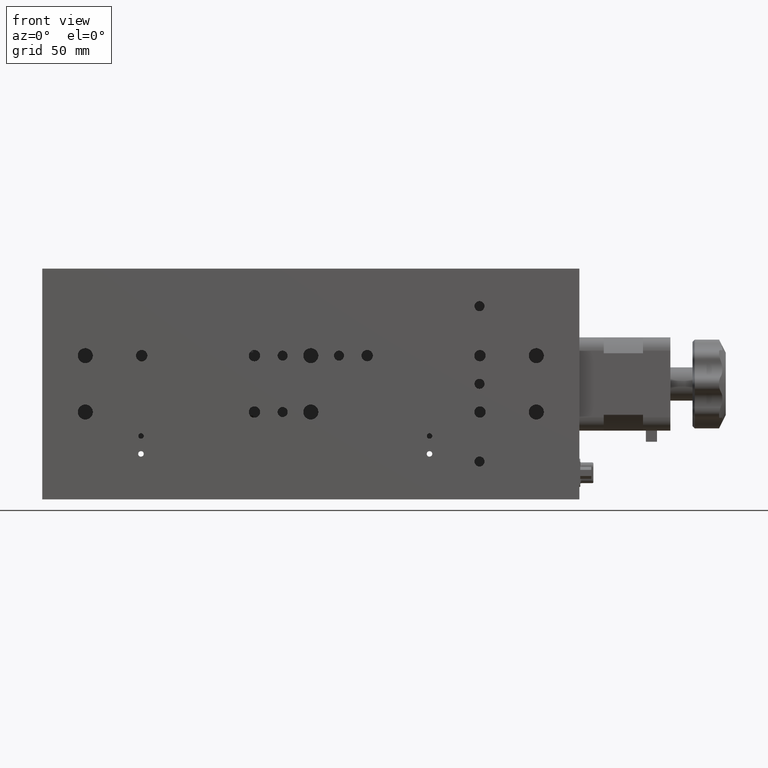
[diagram: clean part render]
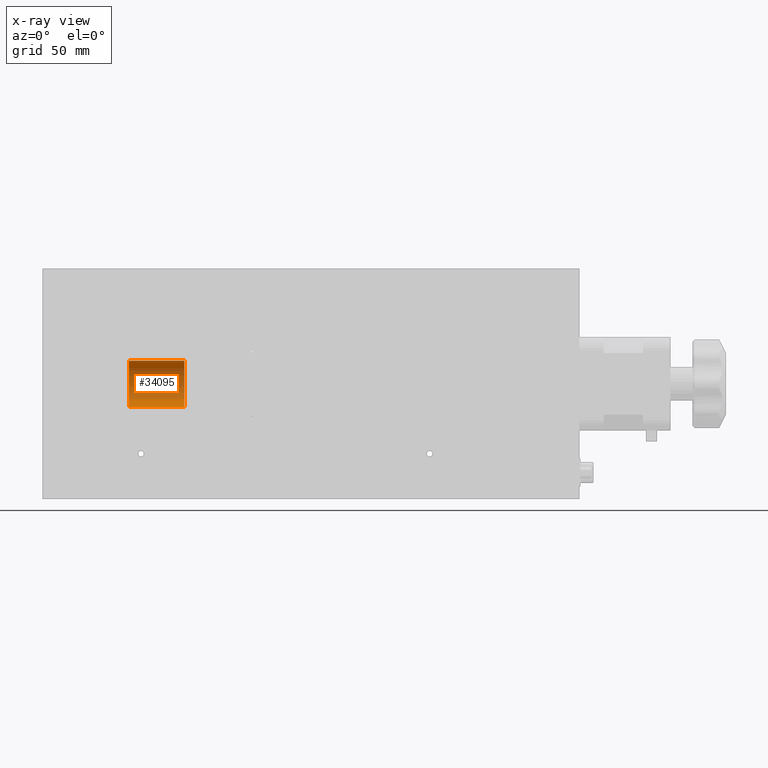
[diagram: x-ray — body ghosted, one internal face saturated and labeled with its STEP entity id]
A machine part, front view, then the same camera in x-ray: the body is ghosted and one INTERNAL B-rep face — a face not visible from any outside direction — is saturated and labeled: STEP entity #34095.
In plain terms, the highlighted cylindrical surface (edge-blend (fillet) strip) has radius 10.5 mm, axis along (-1, -0, -0).
Its self-contained STEP definition (entity closure, byte-faithful):
#397 = CYLINDRICAL_SURFACE ( 'NONE', #7996, 10.50000000000000000 ) ;
#2437 = CARTESIAN_POINT ( 'NONE',  ( -56.95563374086460600, 27.49999999999992200, 10.49999999999999100 ) ) ;
#3318 = DIRECTION ( 'NONE',  ( 1.000000000000000000, 1.734723475976810500E-016, 1.224606353822373600E-016 ) ) ;
#3825 = FACE_OUTER_BOUND ( 'NONE', #27642, .T. ) ;
#3946 = AXIS2_PLACEMENT_3D ( 'NONE', #31856, #15468, #34627 ) ;
#5999 = DIRECTION ( 'NONE',  ( -1.000000000000000000, -1.734723475976810500E-016, -1.224606353822373600E-016 ) ) ;
#6397 = ORIENTED_EDGE ( 'NONE', *, *, #28866, .F. ) ;
#6811 = CARTESIAN_POINT ( 'NONE',  ( -21.95563374086460900, 27.49999999999991100, -10.50000000000000700 ) ) ;
#6950 = LINE ( 'NONE', #6811, #21502 ) ;
#7996 = AXIS2_PLACEMENT_3D ( 'NONE', #13105, #29485, #10498 ) ;
#10498 = DIRECTION ( 'NONE',  ( 0.0000000000000000000, 9.912705577010326500E-016, 1.000000000000000000 ) ) ;
#11645 = ORIENTED_EDGE ( 'NONE', *, *, #32655, .T. ) ;
#12485 = CIRCLE ( 'NONE', #3946, 10.50000000000000000 ) ;
#12505 = ORIENTED_EDGE ( 'NONE', *, *, #31229, .F. ) ;
#12838 = EDGE_CURVE ( 'NONE', #14574, #30433, #13344, .T. ) ;
#12918 = VERTEX_POINT ( 'NONE', #20099 ) ;
#13105 = CARTESIAN_POINT ( 'NONE',  ( -21.95563374086460900, 27.49999999999991800, -6.179623024688121700E-015 ) ) ;
#13344 = LINE ( 'NONE', #14217, #33487 ) ;
#13535 = CIRCLE ( 'NONE', #16150, 10.50000000000000000 ) ;
#14217 = CARTESIAN_POINT ( 'NONE',  ( -21.95563374086460900, 27.49999999999992900, 10.49999999999999300 ) ) ;
#14574 = VERTEX_POINT ( 'NONE', #2437 ) ;
#15468 = DIRECTION ( 'NONE',  ( 1.000000000000000000, 1.734723475976810500E-016, 1.224606353822373600E-016 ) ) ;
#15472 = VERTEX_POINT ( 'NONE', #34416 ) ;
#16150 = AXIS2_PLACEMENT_3D ( 'NONE', #19692, #3318, #22449 ) ;
#17563 = DIRECTION ( 'NONE',  ( -1.000000000000000000, -1.734723475976810500E-016, -1.224606353822373600E-016 ) ) ;
#17965 = ORIENTED_EDGE ( 'NONE', *, *, #12838, .T. ) ;
#19692 = CARTESIAN_POINT ( 'NONE',  ( -56.95563374086460600, 27.49999999999991100, -1.046574526306642800E-014 ) ) ;
#19754 = CARTESIAN_POINT ( 'NONE',  ( -81.95563374086459900, 27.49999999999992200, 10.49999999999998800 ) ) ;
#20099 = CARTESIAN_POINT ( 'NONE',  ( -81.95563374086459900, 27.49999999999990100, -10.50000000000001400 ) ) ;
#21502 = VECTOR ( 'NONE', #17563, 1000.000000000000000 ) ;
#22449 = DIRECTION ( 'NONE',  ( 0.0000000000000000000, -9.912705577010326500E-016, -1.000000000000000000 ) ) ;
#27642 = EDGE_LOOP ( 'NONE', ( #6397, #11645, #17965, #12505 ) ) ;
#28866 = EDGE_CURVE ( 'NONE', #15472, #12918, #6950, .T. ) ;
#29485 = DIRECTION ( 'NONE',  ( -1.000000000000000000, -1.734723475976810500E-016, -1.224606353822373600E-016 ) ) ;
#30433 = VERTEX_POINT ( 'NONE', #19754 ) ;
#31229 = EDGE_CURVE ( 'NONE', #12918, #30433, #12485, .T. ) ;
#31856 = CARTESIAN_POINT ( 'NONE',  ( -81.95563374086459900, 27.49999999999990400, -1.352726114762236300E-014 ) ) ;
#32655 = EDGE_CURVE ( 'NONE', #15472, #14574, #13535, .T. ) ;
#33487 = VECTOR ( 'NONE', #5999, 1000.000000000000000 ) ;
#34095 = ADVANCED_FACE ( 'NONE', ( #3825 ), #397, .F. ) ;
#34416 = CARTESIAN_POINT ( 'NONE',  ( -56.95563374086460600, 27.49999999999990100, -10.50000000000001100 ) ) ;
#34627 = DIRECTION ( 'NONE',  ( 0.0000000000000000000, -9.912705577010326500E-016, -1.000000000000000000 ) ) ;